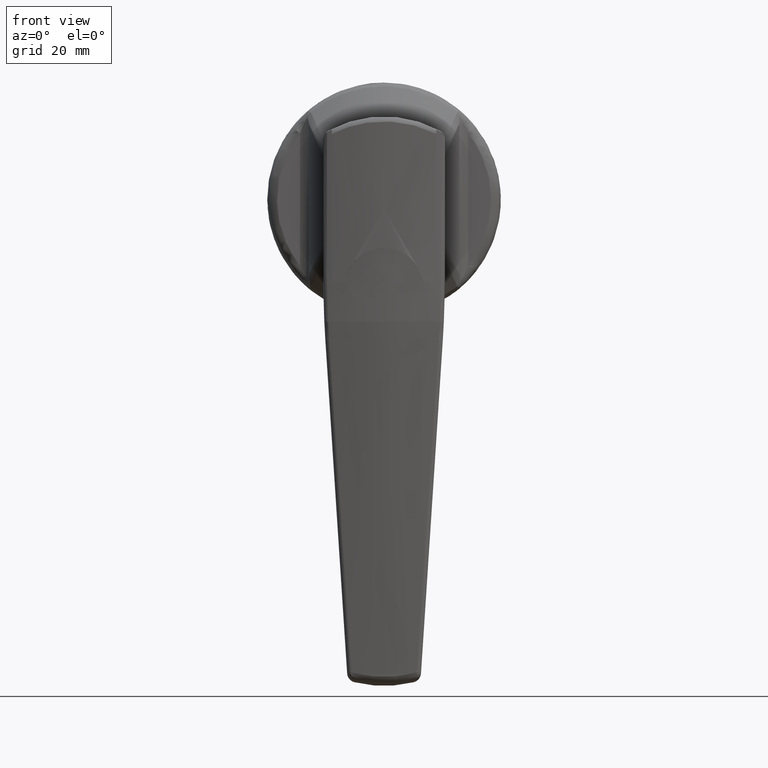
[diagram: clean part render]
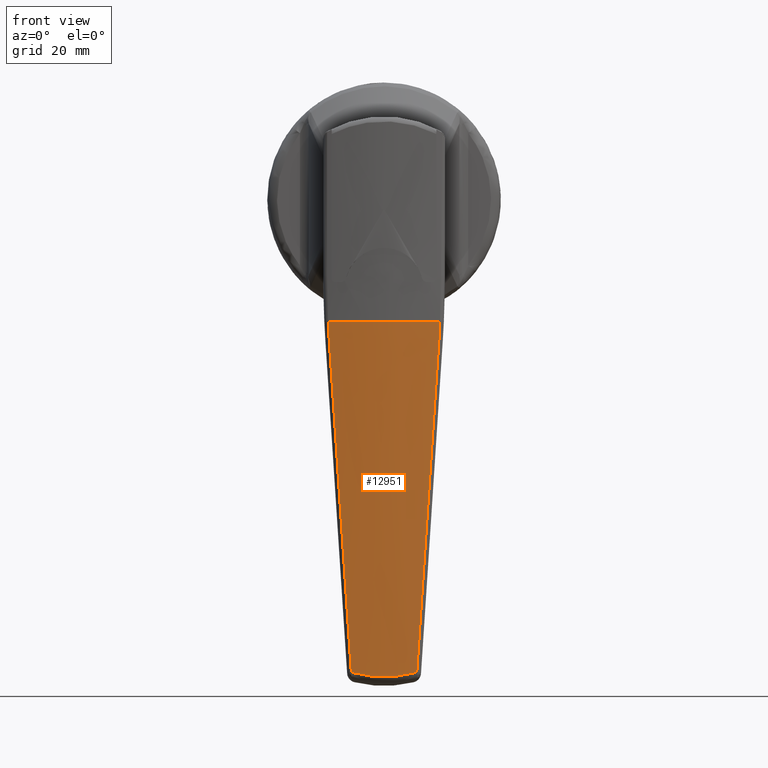
[diagram: same view with one face highlighted and labeled with its STEP entity id]
A machine part, front view. The second image highlights one B-rep face of the part: STEP entity #12951.
In plain terms, the highlighted face is a freeform B-spline surface patch.
Its self-contained STEP definition (entity closure, byte-faithful):
#7257=CARTESIAN_POINT('',(-37.843350285108812,6.721442861657440,-97.221635429455205));
#7258=VERTEX_POINT('',#7257);
#7504=CARTESIAN_POINT('',(-37.843350285108762,-6.721442861657480,-97.221635429455205));
#7505=VERTEX_POINT('',#7504);
#7513=CARTESIAN_POINT('',(-37.843350285108812,6.721442861657440,-97.221635429455205));
#7514=CARTESIAN_POINT('',(-37.942343935908319,5.625169215865836,-97.534044564430928));
#7515=CARTESIAN_POINT('',(-38.018337634325022,4.516814986065543,-97.767281904588913));
#7516=CARTESIAN_POINT('',(-38.120764619877200,2.276422541191168,-98.079988281250976));
#7517=CARTESIAN_POINT('',(-38.147213888095500,1.144385008516285,-98.159457032877555));
#7518=CARTESIAN_POINT('',(-38.147216049215537,-1.144244768731521,-98.159463559908417));
#7519=CARTESIAN_POINT('',(-38.120766742579022,-2.276364652141864,-98.079994726793331));
#7520=CARTESIAN_POINT('',(-38.018338691943342,-4.516803311401072,-97.767285168462976));
#7521=CARTESIAN_POINT('',(-37.942343958184708,-5.625168969172814,-97.534044634731913));
#7522=CARTESIAN_POINT('',(-37.843350285108812,-6.721442861657482,-97.221635429455205));
#7523=B_SPLINE_CURVE_WITH_KNOTS('',3,(#7513,#7514,#7515,#7516,#7517,#7518,#7519,#7520,#7521,#7522),.UNSPECIFIED.,.F.,.U.,(4,2,2,2,4),(0.0,0.250000000000000,0.500000000000000,0.750000000000000,1.0),.UNSPECIFIED.);
#7524=EDGE_CURVE('',#7258,#7505,#7523,.T.);
#8258=CARTESIAN_POINT('',(-42.878764277605747,-11.479719629846400,-25.101466616764949));
#8259=VERTEX_POINT('',#8258);
#8290=CARTESIAN_POINT('',(-42.878764277605747,11.479719629846400,-25.101466616764949));
#8291=VERTEX_POINT('',#8290);
#8305=CARTESIAN_POINT('',(-42.878764277605747,-11.479719629846400,-25.101466616764949));
#8306=CARTESIAN_POINT('',(-45.116384859345537,-1.335737E-013,-25.192300907368548));
#8307=CARTESIAN_POINT('',(-42.878764277605782,11.479719629846370,-25.101466616764981));
#8315=(BOUNDED_CURVE()B_SPLINE_CURVE(2,(#8305,#8306,#8307),.UNSPECIFIED.,.F.,.U.)CURVE()GEOMETRIC_REPRESENTATION_ITEM()QUASI_UNIFORM_CURVE()RATIONAL_B_SPLINE_CURVE((1.0,0.981526028015691,1.0))REPRESENTATION_ITEM(''));
#8316=EDGE_CURVE('',#8259,#8291,#8315,.T.);
#8538=CARTESIAN_POINT('',(-42.615893900489901,11.263684811303120,-28.910993423007550));
#8539=VERTEX_POINT('',#8538);
#8553=CARTESIAN_POINT('',(-42.878764277605747,11.479719629846400,-25.101466616764949));
#8554=CARTESIAN_POINT('',(-42.788812769540733,11.420094255378350,-26.371850654162511));
#8555=CARTESIAN_POINT('',(-42.701235748854337,11.348085053353520,-27.641696263652680));
#8556=CARTESIAN_POINT('',(-42.615893900489901,11.263684811303120,-28.910993423007550));
#8557=QUASI_UNIFORM_CURVE('',3,(#8553,#8554,#8555,#8556),.UNSPECIFIED.,.F.,.U.);
#8558=EDGE_CURVE('',#8291,#8539,#8557,.T.);
#8591=CARTESIAN_POINT('',(-42.615893900489901,-11.263684811303120,-28.910993423007650));
#8592=VERTEX_POINT('',#8591);
#8616=CARTESIAN_POINT('',(-42.615893900489901,-11.263684811303120,-28.910993423007650));
#8617=CARTESIAN_POINT('',(-42.701235748854337,-11.348085053353520,-27.641696263652751));
#8618=CARTESIAN_POINT('',(-42.788812769540783,-11.420094255378350,-26.371850654162539));
#8619=CARTESIAN_POINT('',(-42.878764277605796,-11.479719629846400,-25.101466616764949));
#8620=QUASI_UNIFORM_CURVE('',3,(#8616,#8617,#8618,#8619),.UNSPECIFIED.,.F.,.U.);
#8621=EDGE_CURVE('',#8592,#8259,#8620,.T.);
#8821=CARTESIAN_POINT('',(-42.615893900489901,11.263684811303120,-28.910993423007550));
#8822=CARTESIAN_POINT('',(-40.332782749299106,9.005764020021545,-62.867915545464641));
#8823=CARTESIAN_POINT('',(-37.843350285108798,6.721442861657466,-97.221635429455134));
#8831=(BOUNDED_CURVE()B_SPLINE_CURVE(2,(#8821,#8822,#8823),.UNSPECIFIED.,.F.,.U.)CURVE()GEOMETRIC_REPRESENTATION_ITEM()QUASI_UNIFORM_CURVE()RATIONAL_B_SPLINE_CURVE((1.0,0.999266857087292,1.0))REPRESENTATION_ITEM(''));
#8832=EDGE_CURVE('',#8539,#7258,#8831,.T.);
#8886=CARTESIAN_POINT('',(-37.843350285108762,-6.721442861657480,-97.221635429455205));
#8887=CARTESIAN_POINT('',(-40.332782749299028,-9.005764020021500,-62.867915545465507));
#8888=CARTESIAN_POINT('',(-42.615893900489901,-11.263684811303120,-28.910993423007650));
#8896=(BOUNDED_CURVE()B_SPLINE_CURVE(2,(#8886,#8887,#8888),.UNSPECIFIED.,.F.,.U.)CURVE()GEOMETRIC_REPRESENTATION_ITEM()QUASI_UNIFORM_CURVE()RATIONAL_B_SPLINE_CURVE((1.0,0.999266857087362,1.0))REPRESENTATION_ITEM(''));
#8897=EDGE_CURVE('',#7505,#8592,#8896,.T.);
#12929=CARTESIAN_POINT('',(-36.667663605845746,-12.599512268247643,-99.878121339456470));
#12930=CARTESIAN_POINT('',(-42.803238817942280,-12.599512268247643,-23.168838253154167));
#12931=CARTESIAN_POINT('',(-39.365767490477445,0.002734485896569,-100.093928587916650));
#12932=CARTESIAN_POINT('',(-45.501342702573972,0.002734485896569,-23.384645501614351));
#12933=CARTESIAN_POINT('',(-36.666544125904963,12.604739976983421,-99.878031798098490));
#12934=CARTESIAN_POINT('',(-42.802119338001489,12.604739976983421,-23.168748711796212));
#12942=(BOUNDED_SURFACE()B_SPLINE_SURFACE(1,2,((#12929,#12931,#12933),(#12930,#12932,#12934)),.UNSPECIFIED.,.F.,.F.,.U.)B_SPLINE_SURFACE_WITH_KNOTS((2,2),(3,3),(0.0,76.954268203899900),(0.0,25.488490266353271),.UNSPECIFIED.)GEOMETRIC_REPRESENTATION_ITEM()RATIONAL_B_SPLINE_SURFACE(((0.998829166442929,0.974166726557551,0.993961742774376),(0.998829166442929,0.974166726557551,0.993961742774376)))REPRESENTATION_ITEM('')SURFACE());
#12943=ORIENTED_EDGE('',*,*,#8832,.T.);
#12944=ORIENTED_EDGE('',*,*,#7524,.T.);
#12945=ORIENTED_EDGE('',*,*,#8897,.T.);
#12946=ORIENTED_EDGE('',*,*,#8621,.T.);
#12947=ORIENTED_EDGE('',*,*,#8316,.T.);
#12948=ORIENTED_EDGE('',*,*,#8558,.T.);
#12949=EDGE_LOOP('',(#12943,#12944,#12945,#12946,#12947,#12948));
#12950=FACE_OUTER_BOUND('',#12949,.T.);
#12951=ADVANCED_FACE('',(#12950),#12942,.T.);